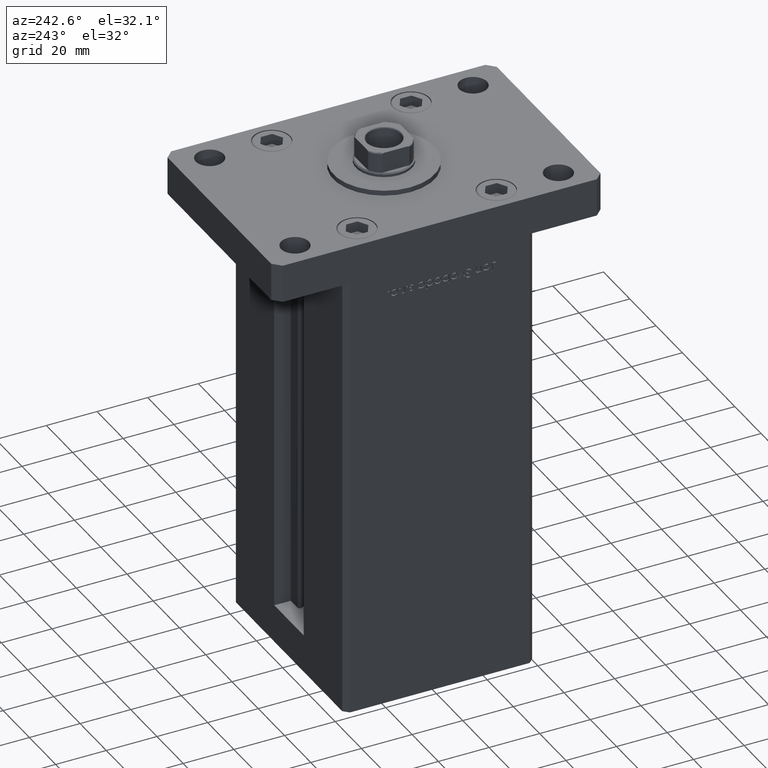
[diagram: clean part render]
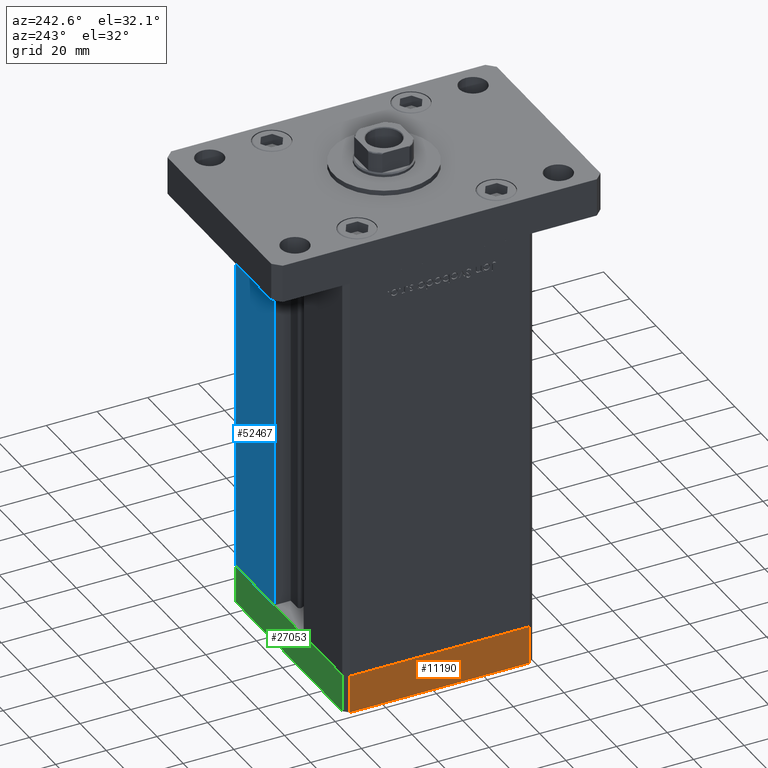
[diagram: same view with three faces highlighted in distinct colors, each labeled with its STEP entity id]
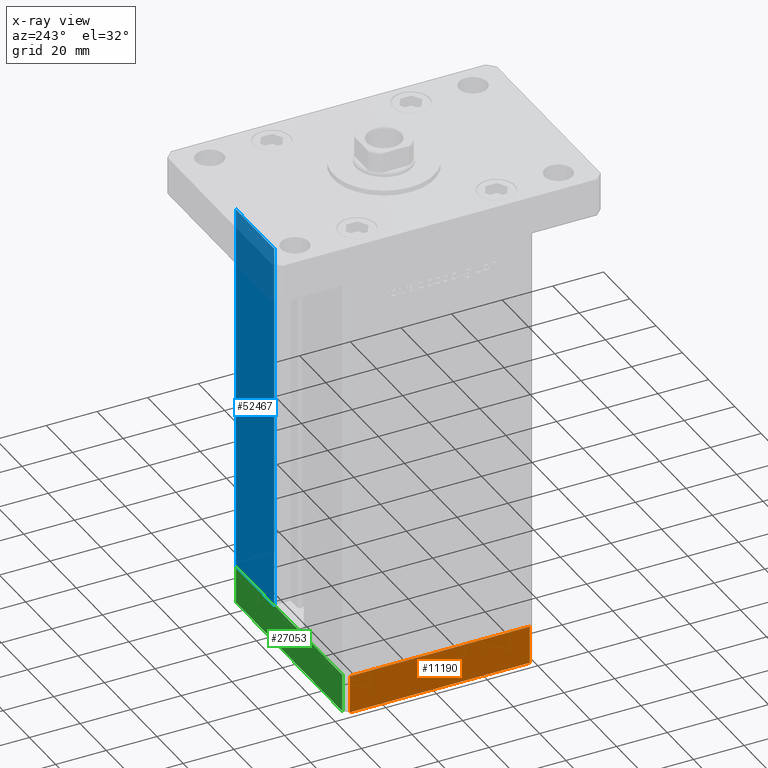
[diagram: x-ray of the same camera — body ghosted, the three highlighted faces saturated]
A machine part, auxiliary view with three faces highlighted in distinct colors.
The next image is the same camera in x-ray (body ghosted, the three faces saturated) — at least one of them is partly hidden behind the body in this view.
Their STEP definitions:

[orange] entity #11190 — the highlighted planar face has unit normal (-1, 0, 0).
#2082 = CARTESIAN_POINT ( 'NONE',  ( 42.49999999999992895, 35.50000000000000000, -15.00000000000000000 ) ) ;
#2843 = ORIENTED_EDGE ( 'NONE', *, *, #26987, .F. ) ;
#3009 = CARTESIAN_POINT ( 'NONE',  ( 42.50000000000000711, -35.50000000000000000, -15.00000000000000000 ) ) ;
#5951 = CARTESIAN_POINT ( 'NONE',  ( 42.49999999999992895, 35.50000000000000000, 0.000000000000000000 ) ) ;
#6345 = CARTESIAN_POINT ( 'NONE',  ( 42.50000000000000711, -35.50000000000000000, 0.000000000000000000 ) ) ;
#6415 = LINE ( 'NONE', #2082, #19233 ) ;
#6480 = DIRECTION ( 'NONE',  ( -1.172770800660376741E-15, 1.000000000000000000, 0.000000000000000000 ) ) ;
#7079 = CARTESIAN_POINT ( 'NONE',  ( 42.50000000000000711, -35.50000000000000000, -15.00000000000000000 ) ) ;
#8237 = DIRECTION ( 'NONE',  ( -1.172770800660376741E-15, 1.000000000000000000, 0.000000000000000000 ) ) ;
#10895 = DIRECTION ( 'NONE',  ( -1.172770800660376741E-15, 1.000000000000000000, 0.000000000000000000 ) ) ;
#11190 = ADVANCED_FACE ( 'NONE', ( #31507 ), #27698, .T. ) ;
#14628 = CARTESIAN_POINT ( 'NONE',  ( 42.50000000000000711, -35.50000000000000000, -15.00000000000000000 ) ) ;
#15627 = AXIS2_PLACEMENT_3D ( 'NONE', #7079, #36106, #10895 ) ;
#19233 = VECTOR ( 'NONE', #34893, 1000.000000000000000 ) ;
#19241 = VERTEX_POINT ( 'NONE', #34945 ) ;
#20228 = VECTOR ( 'NONE', #8237, 1000.000000000000000 ) ;
#21275 = LINE ( 'NONE', #37798, #20228 ) ;
#23589 = VERTEX_POINT ( 'NONE', #6345 ) ;
#26987 = EDGE_CURVE ( 'NONE', #38529, #23589, #29302, .T. ) ;
#27130 = VERTEX_POINT ( 'NONE', #5951 ) ;
#27626 = LINE ( 'NONE', #14628, #48846 ) ;
#27698 = PLANE ( 'NONE',  #15627 ) ;
#28655 = EDGE_CURVE ( 'NONE', #23589, #27130, #21275, .T. ) ;
#29302 = LINE ( 'NONE', #32835, #47189 ) ;
#30805 = EDGE_CURVE ( 'NONE', #38529, #19241, #27626, .T. ) ;
#31507 = FACE_OUTER_BOUND ( 'NONE', #46617, .T. ) ;
#32835 = CARTESIAN_POINT ( 'NONE',  ( 42.50000000000000711, -35.50000000000000000, -15.00000000000000000 ) ) ;
#34893 = DIRECTION ( 'NONE',  ( 0.000000000000000000, 0.000000000000000000, 1.000000000000000000 ) ) ;
#34945 = CARTESIAN_POINT ( 'NONE',  ( 42.49999999999992895, 35.50000000000000000, -15.00000000000000000 ) ) ;
#36106 = DIRECTION ( 'NONE',  ( 1.000000000000000000, 1.172770800660376741E-15, -0.000000000000000000 ) ) ;
#37798 = CARTESIAN_POINT ( 'NONE',  ( 42.50000000000000711, -35.50000000000000000, 0.000000000000000000 ) ) ;
#38529 = VERTEX_POINT ( 'NONE', #3009 ) ;
#41050 = EDGE_CURVE ( 'NONE', #19241, #27130, #6415, .T. ) ;
#46617 = EDGE_LOOP ( 'NONE', ( #53294, #2843, #51012, #49362 ) ) ;
#47189 = VECTOR ( 'NONE', #49662, 1000.000000000000000 ) ;
#48846 = VECTOR ( 'NONE', #6480, 1000.000000000000000 ) ;
#49362 = ORIENTED_EDGE ( 'NONE', *, *, #41050, .T. ) ;
#49662 = DIRECTION ( 'NONE',  ( 0.000000000000000000, 0.000000000000000000, 1.000000000000000000 ) ) ;
#51012 = ORIENTED_EDGE ( 'NONE', *, *, #30805, .T. ) ;
#53294 = ORIENTED_EDGE ( 'NONE', *, *, #28655, .F. ) ;

[blue] entity #52467 — the highlighted planar face has unit normal (-0, -1, 0).
#3404 = CARTESIAN_POINT ( 'NONE',  ( -11.25000000000000000, 37.50000000000000000, 0.000000000000000000 ) ) ;
#3886 = LINE ( 'NONE', #36977, #24533 ) ;
#4698 = VECTOR ( 'NONE', #8015, 1000.000000000000000 ) ;
#5272 = ORIENTED_EDGE ( 'NONE', *, *, #28087, .T. ) ;
#6966 = CARTESIAN_POINT ( 'NONE',  ( 40.50000000000000000, 37.50000000000000711, 147.5000000000000000 ) ) ;
#8015 = DIRECTION ( 'NONE',  ( -1.000000000000000000, 2.372271420139223331E-16, 0.000000000000000000 ) ) ;
#8322 = DIRECTION ( 'NONE',  ( 1.000000000000000000, -2.372271420139223331E-16, 0.000000000000000000 ) ) ;
#9508 = ORIENTED_EDGE ( 'NONE', *, *, #48930, .T. ) ;
#10512 = DIRECTION ( 'NONE',  ( 1.000000000000000000, 0.000000000000000000, 0.000000000000000000 ) ) ;
#13578 = VERTEX_POINT ( 'NONE', #6966 ) ;
#14655 = EDGE_LOOP ( 'NONE', ( #37650, #9508, #26693, #5272 ) ) ;
#18926 = LINE ( 'NONE', #35458, #51522 ) ;
#21354 = PLANE ( 'NONE',  #39376 ) ;
#24171 = DIRECTION ( 'NONE',  ( -0.000000000000000000, -0.000000000000000000, -1.000000000000000000 ) ) ;
#24533 = VECTOR ( 'NONE', #45667, 1000.000000000000000 ) ;
#26693 = ORIENTED_EDGE ( 'NONE', *, *, #32454, .T. ) ;
#28087 = EDGE_CURVE ( 'NONE', #13578, #48235, #48066, .T. ) ;
#31277 = EDGE_CURVE ( 'NONE', #48235, #33759, #53593, .T. ) ;
#32454 = EDGE_CURVE ( 'NONE', #52697, #13578, #18926, .T. ) ;
#33108 = CARTESIAN_POINT ( 'NONE',  ( 40.50000000000000000, 37.50000000000000711, 147.5000000000000000 ) ) ;
#33759 = VERTEX_POINT ( 'NONE', #53574 ) ;
#33802 = DIRECTION ( 'NONE',  ( -2.372271420139223331E-16, -1.000000000000000000, 0.000000000000000000 ) ) ;
#35458 = CARTESIAN_POINT ( 'NONE',  ( -11.25000000000000000, 37.50000000000000000, 147.5000000000000000 ) ) ;
#36977 = CARTESIAN_POINT ( 'NONE',  ( 11.25000000000000000, 37.50000000000000000, 0.000000000000000000 ) ) ;
#37650 = ORIENTED_EDGE ( 'NONE', *, *, #31277, .T. ) ;
#39368 = VECTOR ( 'NONE', #24171, 1000.000000000000000 ) ;
#39376 = AXIS2_PLACEMENT_3D ( 'NONE', #41960, #33802, #8322 ) ;
#41960 = CARTESIAN_POINT ( 'NONE',  ( -11.25000000000000000, 37.50000000000000000, 147.5000000000000000 ) ) ;
#45491 = FACE_OUTER_BOUND ( 'NONE', #14655, .T. ) ;
#45667 = DIRECTION ( 'NONE',  ( -0.000000000000000000, -0.000000000000000000, 1.000000000000000000 ) ) ;
#46681 = CARTESIAN_POINT ( 'NONE',  ( 40.50000000000000000, 37.50000000000000711, 0.000000000000000000 ) ) ;
#48066 = LINE ( 'NONE', #33108, #39368 ) ;
#48235 = VERTEX_POINT ( 'NONE', #46681 ) ;
#48930 = EDGE_CURVE ( 'NONE', #33759, #52697, #3886, .T. ) ;
#48946 = CARTESIAN_POINT ( 'NONE',  ( 11.24999999999999289, 37.50000000000000000, 147.5000000000000000 ) ) ;
#51522 = VECTOR ( 'NONE', #10512, 1000.000000000000000 ) ;
#52467 = ADVANCED_FACE ( 'NONE', ( #45491 ), #21354, .F. ) ;
#52697 = VERTEX_POINT ( 'NONE', #48946 ) ;
#53574 = CARTESIAN_POINT ( 'NONE',  ( 11.25000000000000000, 37.50000000000000000, 0.000000000000000000 ) ) ;
#53593 = LINE ( 'NONE', #3404, #4698 ) ;

[green] entity #27053 — the highlighted planar face has unit normal (0, 1, 0).
#294 = DIRECTION ( 'NONE',  ( -3.426614273534436165E-16, 1.000000000000000000, 0.000000000000000000 ) ) ;
#1969 = CARTESIAN_POINT ( 'NONE',  ( 40.49999999999991473, 37.50000000000000711, 0.000000000000000000 ) ) ;
#2069 = EDGE_CURVE ( 'NONE', #25649, #51976, #9859, .T. ) ;
#9859 = LINE ( 'NONE', #30213, #27363 ) ;
#11646 = LINE ( 'NONE', #40942, #33048 ) ;
#11692 = CARTESIAN_POINT ( 'NONE',  ( 40.49999999999991473, 37.50000000000000711, -15.00000000000000000 ) ) ;
#12339 = VECTOR ( 'NONE', #40719, 1000.000000000000000 ) ;
#12487 = CARTESIAN_POINT ( 'NONE',  ( 40.49999999999991473, 37.50000000000000711, -15.00000000000000000 ) ) ;
#13016 = VERTEX_POINT ( 'NONE', #15054 ) ;
#13438 = ORIENTED_EDGE ( 'NONE', *, *, #42527, .F. ) ;
#14377 = DIRECTION ( 'NONE',  ( -1.000000000000000000, -3.426614273534436165E-16, 0.000000000000000000 ) ) ;
#15054 = CARTESIAN_POINT ( 'NONE',  ( 40.49999999999991473, 37.50000000000000711, -15.00000000000000000 ) ) ;
#15594 = ORIENTED_EDGE ( 'NONE', *, *, #38657, .T. ) ;
#18262 = CARTESIAN_POINT ( 'NONE',  ( -40.50000000000000711, 37.49999999999997868, 0.000000000000000000 ) ) ;
#20053 = DIRECTION ( 'NONE',  ( 0.000000000000000000, 0.000000000000000000, 1.000000000000000000 ) ) ;
#20909 = DIRECTION ( 'NONE',  ( -1.000000000000000000, -3.426614273534436165E-16, 0.000000000000000000 ) ) ;
#21488 = VERTEX_POINT ( 'NONE', #44281 ) ;
#25522 = PLANE ( 'NONE',  #50646 ) ;
#25649 = VERTEX_POINT ( 'NONE', #1969 ) ;
#27053 = ADVANCED_FACE ( 'NONE', ( #33366 ), #25522, .T. ) ;
#27363 = VECTOR ( 'NONE', #46770, 1000.000000000000000 ) ;
#27377 = LINE ( 'NONE', #31437, #35594 ) ;
#30213 = CARTESIAN_POINT ( 'NONE',  ( 40.49999999999991473, 37.50000000000000711, 0.000000000000000000 ) ) ;
#30621 = ORIENTED_EDGE ( 'NONE', *, *, #2069, .F. ) ;
#31437 = CARTESIAN_POINT ( 'NONE',  ( 40.49999999999991473, 37.50000000000000711, -15.00000000000000000 ) ) ;
#33048 = VECTOR ( 'NONE', #20053, 1000.000000000000000 ) ;
#33366 = FACE_OUTER_BOUND ( 'NONE', #44569, .T. ) ;
#35594 = VECTOR ( 'NONE', #14377, 1000.000000000000000 ) ;
#38657 = EDGE_CURVE ( 'NONE', #13016, #21488, #27377, .T. ) ;
#39835 = EDGE_CURVE ( 'NONE', #21488, #51976, #11646, .T. ) ;
#40719 = DIRECTION ( 'NONE',  ( 0.000000000000000000, 0.000000000000000000, 1.000000000000000000 ) ) ;
#40942 = CARTESIAN_POINT ( 'NONE',  ( -40.50000000000000711, 37.49999999999997868, -15.00000000000000000 ) ) ;
#41169 = ORIENTED_EDGE ( 'NONE', *, *, #39835, .T. ) ;
#42527 = EDGE_CURVE ( 'NONE', #13016, #25649, #48857, .T. ) ;
#44281 = CARTESIAN_POINT ( 'NONE',  ( -40.50000000000000711, 37.49999999999997868, -15.00000000000000000 ) ) ;
#44569 = EDGE_LOOP ( 'NONE', ( #30621, #13438, #15594, #41169 ) ) ;
#46770 = DIRECTION ( 'NONE',  ( -1.000000000000000000, -3.426614273534436165E-16, 0.000000000000000000 ) ) ;
#48857 = LINE ( 'NONE', #11692, #12339 ) ;
#50646 = AXIS2_PLACEMENT_3D ( 'NONE', #12487, #294, #20909 ) ;
#51976 = VERTEX_POINT ( 'NONE', #18262 ) ;